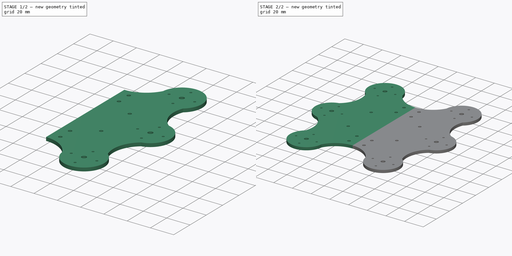
[diagram: build sequence overview — one tinted view per stage of 2, left to right]
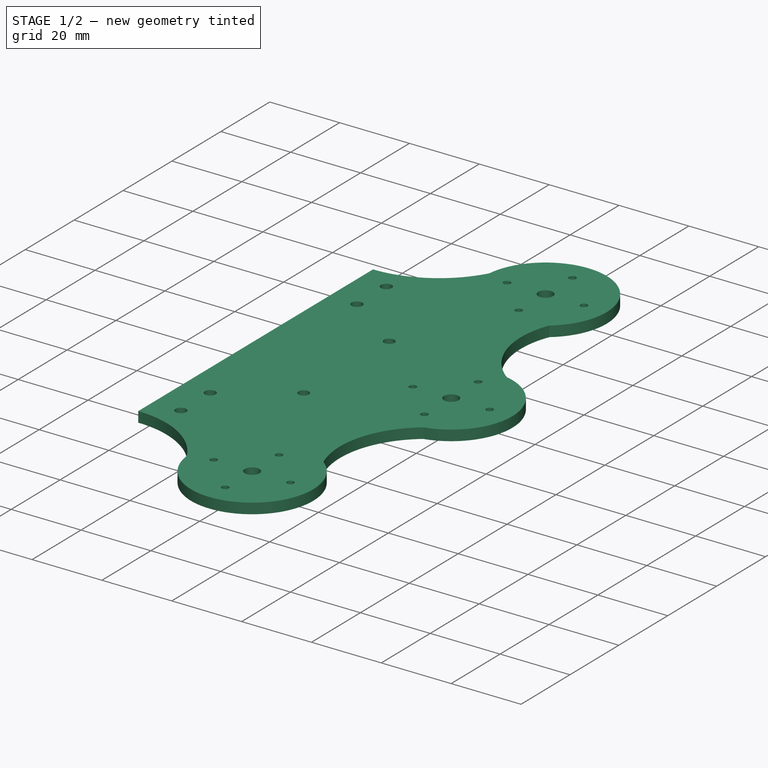
[diagram: stage 1 of 2 — iso view after this stage's code; geometry added in this stage tinted green]
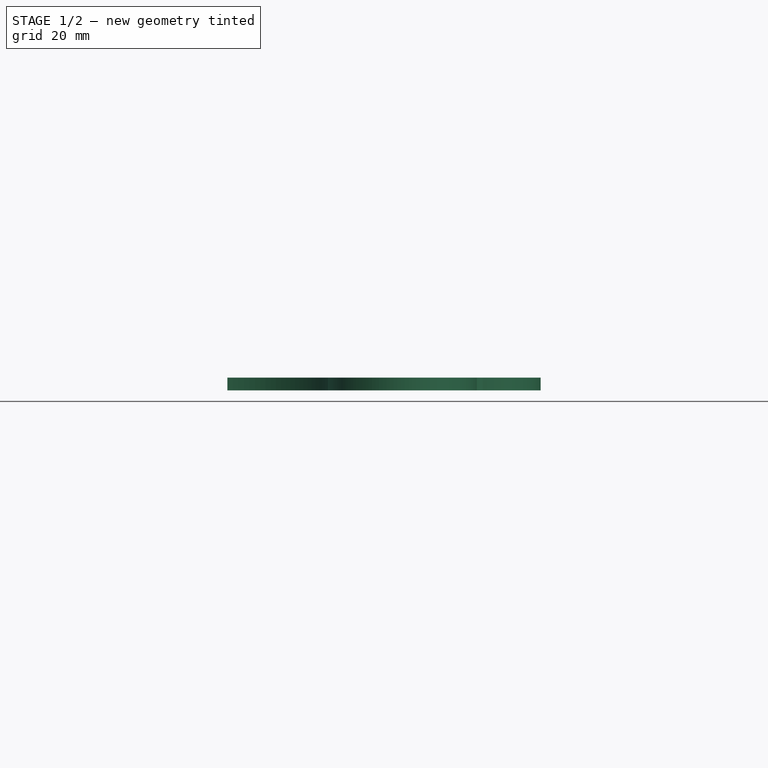
[diagram: stage 1 of 2 — front view after this stage's code; geometry added in this stage tinted green]
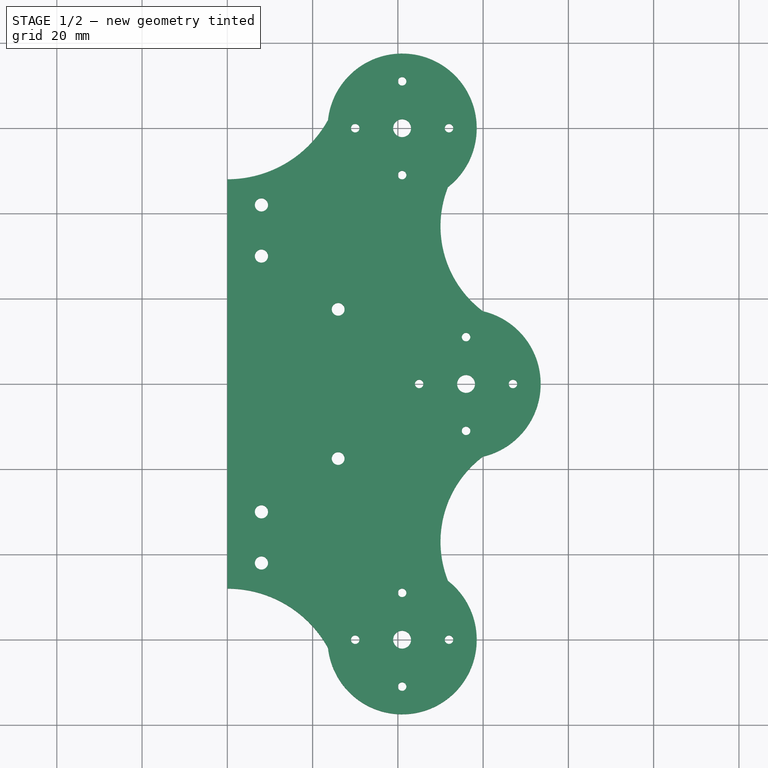
[diagram: stage 1 of 2 — top view after this stage's code; geometry added in this stage tinted green]
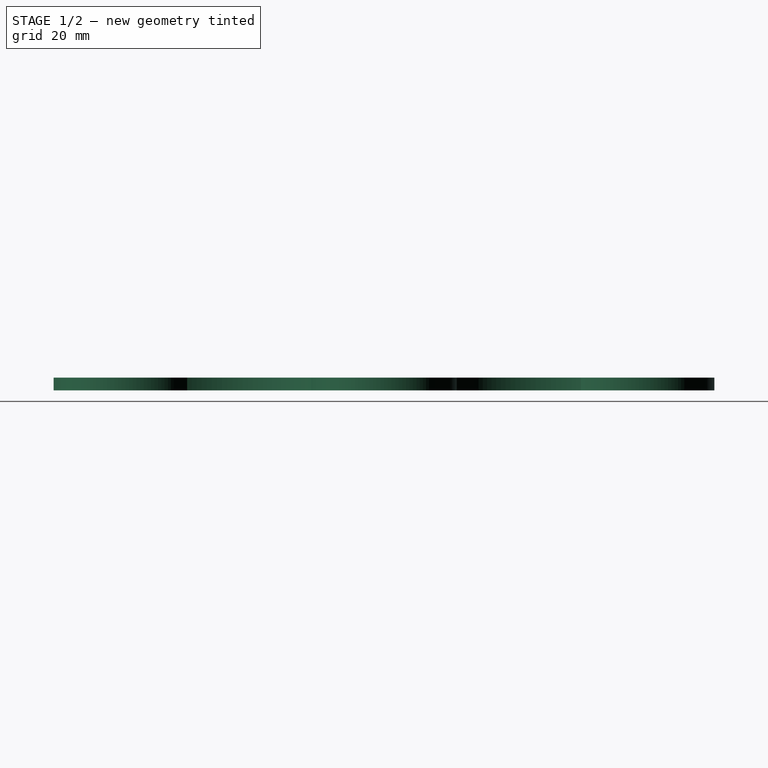
[diagram: stage 1 of 2 — right view after this stage's code; geometry added in this stage tinted green]
FCSTD DOCUMENT  (FreeCAD 0.18R16117 (Git))
Label: BaseMain
License: All rights reserved
LicenseURL: http://en.wikipedia.org/wiki/All_rights_reserved
objects: Sketcher::SketchObject×2, PartDesign::Pad×2, PartDesign::Body×2, Part::MultiFuse×1
note: 9 computed .brp shape members not serialized (recipe doc carries the construction recipe); baked Part::Feature solids carry a one-line shape summary decoded from their .brp

FEATURE [Sketcher::SketchObject] Sketch
  MapMode = 5
  Support = -> [XY_Plane]
  sketch-geometry (29):
    g0: ArcOfCircle CenterX=56 CenterY=0 CenterZ=0 NormalX=0 NormalY=0 NormalZ=1 AngleXU=0 Radius=17.5 StartAngle=4.93886 EndAngle=7.62751
    g1: ArcOfCircle CenterX=41 CenterY=60 CenterZ=0 NormalX=0 NormalY=0 NormalZ=1 AngleXU=0 Radius=17.5 StartAngle=5.37395 EndAngle=9.31672
    g2: ArcOfCircle CenterX=41 CenterY=-60 CenterZ=0 NormalX=0 NormalY=0 NormalZ=1 AngleXU=0 Radius=17.5 StartAngle=3.24965 EndAngle=7.19242
    g3: LineSegment StartX=1.7e-15 StartY=48 StartZ=0 EndX=1.7e-15 EndY=-48 EndZ=0
    g4: ArcOfCircle CenterX=0 CenterY=75 CenterZ=0 NormalX=0 NormalY=0 NormalZ=1 AngleXU=0 Radius=27 StartAngle=4.71239 EndAngle=5.77607
    g5: ArcOfCircle CenterX=0 CenterY=-75 CenterZ=0 NormalX=0 NormalY=0 NormalZ=1 AngleXU=0 Radius=27 StartAngle=0.507112 EndAngle=1.5708
    g6: ArcOfCircle CenterX=75 CenterY=37 CenterZ=0 NormalX=0 NormalY=0 NormalZ=1 AngleXU=0 Radius=25 StartAngle=2.76508 EndAngle=4.06535
    g7: ArcOfCircle CenterX=75 CenterY=-37 CenterZ=0 NormalX=0 NormalY=0 NormalZ=1 AngleXU=0 Radius=25 StartAngle=2.21783 EndAngle=3.5181
    g8: Circle CenterX=41 CenterY=60 CenterZ=0 NormalX=0 NormalY=0 NormalZ=1 AngleXU=0 Radius=2.1
    g9: Circle CenterX=56 CenterY=0 CenterZ=0 NormalX=0 NormalY=0 NormalZ=1 AngleXU=0 Radius=2.1
    g10: Circle CenterX=41 CenterY=-60 CenterZ=0 NormalX=0 NormalY=0 NormalZ=1 AngleXU=0 Radius=2.1
    g11: Circle CenterX=41 CenterY=71 CenterZ=0 NormalX=0 NormalY=0 NormalZ=1 AngleXU=0 Radius=1
    g12: Circle CenterX=41 CenterY=49 CenterZ=0 NormalX=0 NormalY=0 NormalZ=1 AngleXU=0 Radius=1
    g13: Circle CenterX=52 CenterY=60 CenterZ=0 NormalX=0 NormalY=0 NormalZ=1 AngleXU=0 Radius=1
    g14: Circle CenterX=30 CenterY=60 CenterZ=0 NormalX=0 NormalY=0 NormalZ=1 AngleXU=0 Radius=1
    g15: Circle CenterX=56 CenterY=11 CenterZ=0 NormalX=0 NormalY=0 NormalZ=1 AngleXU=0 Radius=1
    g16: Circle CenterX=56 CenterY=-11 CenterZ=0 NormalX=0 NormalY=0 NormalZ=1 AngleXU=0 Radius=1
    g17: Circle CenterX=67 CenterY=0 CenterZ=0 NormalX=0 NormalY=0 NormalZ=1 AngleXU=0 Radius=1
    g18: Circle CenterX=45 CenterY=0 CenterZ=0 NormalX=0 NormalY=0 NormalZ=1 AngleXU=0 Radius=1
    g19: Circle CenterX=41 CenterY=-49 CenterZ=0 NormalX=0 NormalY=0 NormalZ=1 AngleXU=0 Radius=1
    g20: Circle CenterX=41 CenterY=-71 CenterZ=0 NormalX=0 NormalY=0 NormalZ=1 AngleXU=0 Radius=1
    g21: Circle CenterX=52 CenterY=-60 CenterZ=0 NormalX=0 NormalY=0 NormalZ=1 AngleXU=0 Radius=1
    g22: Circle CenterX=30 CenterY=-60 CenterZ=0 NormalX=0 NormalY=0 NormalZ=1 AngleXU=0 Radius=1
    g23: Circle CenterX=8 CenterY=-42 CenterZ=0 NormalX=0 NormalY=0 NormalZ=1 AngleXU=0 Radius=1.55
    g24: Circle CenterX=8 CenterY=-30 CenterZ=0 NormalX=0 NormalY=0 NormalZ=1 AngleXU=0 Radius=1.55
    g25: Circle CenterX=8 CenterY=30 CenterZ=0 NormalX=0 NormalY=0 NormalZ=1 AngleXU=0 Radius=1.55
    g26: Circle CenterX=8 CenterY=42 CenterZ=0 NormalX=0 NormalY=0 NormalZ=1 AngleXU=0 Radius=1.55
    g27: Circle CenterX=26 CenterY=17.5 CenterZ=0 NormalX=0 NormalY=0 NormalZ=1 AngleXU=0 Radius=1.5
    g28: Circle CenterX=26 CenterY=-17.5 CenterZ=0 NormalX=0 NormalY=0 NormalZ=1 AngleXU=0 Radius=1.5
  constraints (80):
    c: Equal(g0,g2)
    c: Equal(g2,g1)
    c: Symmetric(g1,g2,g-1)
    c: Radius(g1) = 17.5
    c: PointOnObject(g0,g-1)
    c: DistanceY(g2,g1) = 120
    c: DistanceX(g-1,g0) = 56
    c: DistanceX(g-1,g1) = 41
    c: Vertical(g3)
    c: PointOnObject(g4,g-2)
    c: Radius(g4) = 27
    c: DistanceY(g-1,g4) = 75
    c: Symmetric(g5,g4,g-1)
    c: Coincident(g3,g5)
    c: Coincident(g3,g4)
    c: DistanceX(g-1,g6) = 75
    c: DistanceY(g-1,g6) = 37
    c: Symmetric(g7,g6,g-1)
    c: PointOnObject(g4,g-2)
    c: Equal(g6,g7)
    c: Equal(g5,g4)
    c: Radius(g6) = 25
    c: Coincident(g1,g6)
    c: Coincident(g1,g4)
    c: Coincident(g0,g7)
    c: Coincident(g0,g6)
    c: Coincident(g2,g5)
    c: Coincident(g2,g7)
    c: Coincident(g8,g1)
    c: Coincident(g10,g2)
    c: Equal(g10,g9)
    c: Equal(g9,g8)
    c: Diameter(g8) = 4.2
    c: Equal(g14,g11)
    c: Equal(g11,g13)
    c: Equal(g13,g12)
    c: Diameter(g11) = 2
    c: Vertical(g11,g12)
    c: Horizontal(g14,g13)
    c: Symmetric(g11,g12,g1)
    c: Symmetric(g13,g14,g1)
    c: DistanceY(g1,g11) = 11
    c: DistanceX(g14,g1) = 11
    c: Equal(g18,g15)
    c: Equal(g15,g17)
    c: Equal(g17,g16)
    c: Equal(g11,g15) = 2
    c: Vertical(g15,g16)
    c: Horizontal(g18,g17)
    c: Symmetric(g15,g16,g0)
    c: Symmetric(g17,g18,g0)
    c: DistanceY(g15) = 11
    c: DistanceX(g18,g0) = 11
    c: Equal(g22,g19)
    c: Equal(g19,g21)
    c: Equal(g21,g20)
    c: Vertical(g19,g20)
    c: Horizontal(g22,g21)
    c: Symmetric(g21,g22,g2)
    c: DistanceX(g22,g2) = 11
    c: Symmetric(g19,g20,g2)
    c: DistanceY(g2,g19) = 11
    c: Diameter(g19) = 2
    c: Coincident(g9,g0)
    c: Equal(g24,g23)
    c: Diameter(g24) = 3.1
    c: Vertical(g24,g23)
    c: DistanceY(g23,g24) = 12
    c: DistanceY(g24,g-1) = 30
    c: DistanceX(g-1,g24) = 8
    c: Equal(g26,g25)
    c: Equal(g24,g26) = 3
    c: Vertical(g26,g25)
    c: DistanceY(g25,g26) = 12
    c: Symmetric(g25,g24,g-1)
    c: Equal(g27,g28)
    c: Symmetric(g27,g28,g-1)
    c: DistanceX(g-1,g27) = 26
    c: DistanceY(g28,g27) = 35
    c: Diameter(g27) = 3
FEATURE [PartDesign::Pad] Pad
  Length = 3
  Length2 = 100
  Profile = -> Sketch
  Type = 0
FEATURE [PartDesign::Body] Body
  Group = -> [Sketch,Pad]
  Origin = -> Origin
  Tip = -> Pad
FEATURE [Sketcher::SketchObject] Sketch001
  MapMode = 5
  Support = -> [XY_Plane001]
  sketch-geometry (29):
    g0: ArcOfCircle CenterX=56 CenterY=0 CenterZ=0 NormalX=0 NormalY=0 NormalZ=1 AngleXU=0 Radius=17.5 StartAngle=4.93886 EndAngle=7.62751
    g1: ArcOfCircle CenterX=41 CenterY=60 CenterZ=0 NormalX=0 NormalY=0 NormalZ=1 AngleXU=0 Radius=17.5 StartAngle=5.37395 EndAngle=9.31672
    g2: ArcOfCircle CenterX=41 CenterY=-60 CenterZ=0 NormalX=0 NormalY=0 NormalZ=1 AngleXU=0 Radius=17.5 StartAngle=3.24965 EndAngle=7.19242
    g3: LineSegment StartX=-5e-15 StartY=48 StartZ=0 EndX=-5e-15 EndY=-48 EndZ=0
    g4: ArcOfCircle CenterX=0 CenterY=75 CenterZ=0 NormalX=0 NormalY=0 NormalZ=1 AngleXU=0 Radius=27 StartAngle=4.71239 EndAngle=5.77607
    g5: ArcOfCircle CenterX=0 CenterY=-75 CenterZ=0 NormalX=0 NormalY=0 NormalZ=1 AngleXU=0 Radius=27 StartAngle=0.507112 EndAngle=1.5708
    g6: ArcOfCircle CenterX=75 CenterY=37 CenterZ=0 NormalX=0 NormalY=0 NormalZ=1 AngleXU=0 Radius=25 StartAngle=2.76508 EndAngle=4.06535
    g7: ArcOfCircle CenterX=75 CenterY=-37 CenterZ=0 NormalX=0 NormalY=0 NormalZ=1 AngleXU=0 Radius=25 StartAngle=2.21783 EndAngle=3.5181
    g8: Circle CenterX=41 CenterY=60 CenterZ=0 NormalX=0 NormalY=0 NormalZ=1 AngleXU=0 Radius=2.1
    g9: Circle CenterX=56 CenterY=0 CenterZ=0 NormalX=0 NormalY=0 NormalZ=1 AngleXU=0 Radius=2.1
    g10: Circle CenterX=41 CenterY=-60 CenterZ=0 NormalX=0 NormalY=0 NormalZ=1 AngleXU=0 Radius=2.1
    g11: Circle CenterX=41 CenterY=71 CenterZ=0 NormalX=0 NormalY=0 NormalZ=1 AngleXU=0 Radius=1
    g12: Circle CenterX=41 CenterY=49 CenterZ=0 NormalX=0 NormalY=0 NormalZ=1 AngleXU=0 Radius=1
    g13: Circle CenterX=52 CenterY=60 CenterZ=0 NormalX=0 NormalY=0 NormalZ=1 AngleXU=0 Radius=1
    g14: Circle CenterX=30 CenterY=60 CenterZ=0 NormalX=0 NormalY=0 NormalZ=1 AngleXU=0 Radius=1
    g15: Circle CenterX=56 CenterY=11 CenterZ=0 NormalX=0 NormalY=0 NormalZ=1 AngleXU=0 Radius=1
    g16: Circle CenterX=56 CenterY=-11 CenterZ=0 NormalX=0 NormalY=0 NormalZ=1 AngleXU=0 Radius=1
    g17: Circle CenterX=67 CenterY=0 CenterZ=0 NormalX=0 NormalY=0 NormalZ=1 AngleXU=0 Radius=1
    g18: Circle CenterX=45 CenterY=0 CenterZ=0 NormalX=0 NormalY=0 NormalZ=1 AngleXU=0 Radius=1
    g19: Circle CenterX=41 CenterY=-49 CenterZ=0 NormalX=0 NormalY=0 NormalZ=1 AngleXU=0 Radius=1
    g20: Circle CenterX=41 CenterY=-71 CenterZ=0 NormalX=0 NormalY=0 NormalZ=1 AngleXU=0 Radius=1
    g21: Circle CenterX=52 CenterY=-60 CenterZ=0 NormalX=0 NormalY=0 NormalZ=1 AngleXU=0 Radius=1
    g22: Circle CenterX=30 CenterY=-60 CenterZ=0 NormalX=0 NormalY=0 NormalZ=1 AngleXU=0 Radius=1
    g23: Circle CenterX=8 CenterY=-42 CenterZ=0 NormalX=0 NormalY=0 NormalZ=1 AngleXU=0 Radius=1.55
    g24: Circle CenterX=8 CenterY=-30 CenterZ=0 NormalX=0 NormalY=0 NormalZ=1 AngleXU=0 Radius=1.55
    g25: Circle CenterX=8 CenterY=30 CenterZ=0 NormalX=0 NormalY=0 NormalZ=1 AngleXU=0 Radius=1.55
    g26: Circle CenterX=8 CenterY=42 CenterZ=0 NormalX=0 NormalY=0 NormalZ=1 AngleXU=0 Radius=1.55
    g27: Circle CenterX=26 CenterY=17.5 CenterZ=0 NormalX=0 NormalY=0 NormalZ=1 AngleXU=0 Radius=1.5
    g28: Circle CenterX=26 CenterY=-17.5 CenterZ=0 NormalX=0 NormalY=0 NormalZ=1 AngleXU=0 Radius=1.5
  constraints (80):
    c: Equal(g0,g2)
    c: Equal(g2,g1)
    c: Symmetric(g1,g2,g-1)
    c: Radius(g1) = 17.5
    c: PointOnObject(g0,g-1)
    c: DistanceY(g2,g1) = 120
    c: DistanceX(g-1,g0) = 56
    c: DistanceX(g-1,g1) = 41
    c: Vertical(g3)
    c: PointOnObject(g4,g-2)
    c: Radius(g4) = 27
    c: DistanceY(g-1,g4) = 75
    c: Symmetric(g5,g4,g-1)
    c: Coincident(g3,g5)
    c: Coincident(g3,g4)
    c: DistanceX(g-1,g6) = 75
    c: DistanceY(g-1,g6) = 37
    c: Symmetric(g7,g6,g-1)
    c: PointOnObject(g4,g-2)
    c: Equal(g6,g7)
    c: Equal(g5,g4)
    c: Radius(g6) = 25
    c: Coincident(g1,g6)
    c: Coincident(g1,g4)
    c: Coincident(g0,g7)
    c: Coincident(g0,g6)
    c: Coincident(g2,g5)
    c: Coincident(g2,g7)
    c: Coincident(g8,g1)
    c: Coincident(g10,g2)
    c: Equal(g10,g9)
    c: Equal(g9,g8)
    c: Diameter(g8) = 4.2
    c: Equal(g14,g11)
    c: Equal(g11,g13)
    c: Equal(g13,g12)
    c: Diameter(g11) = 2
    c: Vertical(g11,g12)
    c: Horizontal(g14,g13)
    c: Symmetric(g11,g12,g1)
    c: Symmetric(g13,g14,g1)
    c: DistanceY(g1,g11) = 11
    c: DistanceX(g14,g1) = 11
    c: Equal(g18,g15)
    c: Equal(g15,g17)
    c: Equal(g17,g16)
    c: Equal(g11,g15) = 2
    c: Vertical(g15,g16)
    c: Horizontal(g18,g17)
    c: Symmetric(g15,g16,g0)
    c: Symmetric(g17,g18,g0)
    c: DistanceY(g15) = 11
    c: DistanceX(g18,g0) = 11
    c: Equal(g22,g19)
    c: Equal(g19,g21)
    c: Equal(g21,g20)
    c: Vertical(g19,g20)
    c: Horizontal(g22,g21)
    c: Symmetric(g21,g22,g2)
    c: DistanceX(g22,g2) = 11
    c: Symmetric(g19,g20,g2)
    c: DistanceY(g2,g19) = 11
    c: Diameter(g19) = 2
    c: Coincident(g9,g0)
    c: Equal(g24,g23)
    c: Diameter(g24) = 3.1
    c: Vertical(g24,g23)
    c: DistanceY(g23,g24) = 12
    c: DistanceY(g24,g-1) = 30
    c: DistanceX(g-1,g24) = 8
    c: Equal(g26,g25)
    c: Equal(g24,g26) = 3
    c: Vertical(g26,g25)
    c: DistanceY(g25,g26) = 12
    c: Symmetric(g25,g24,g-1)
    c: Equal(g27,g28)
    c: Symmetric(g27,g28,g-1)
    c: DistanceX(g-1,g27) = 26
    c: DistanceY(g28,g27) = 35
    c: Diameter(g27) = 3
FEATURE [PartDesign::Pad] Pad001
  Length = 3
  Length2 = 100
  Profile = -> Sketch001
  Type = 0
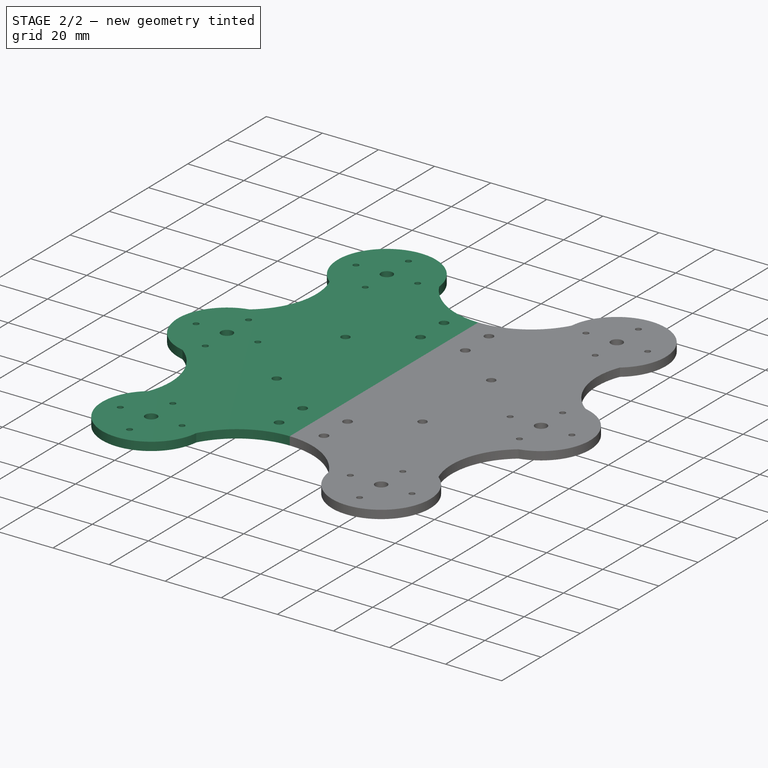
[diagram: stage 2 of 2 — iso view after this stage's code; geometry added in this stage tinted green]
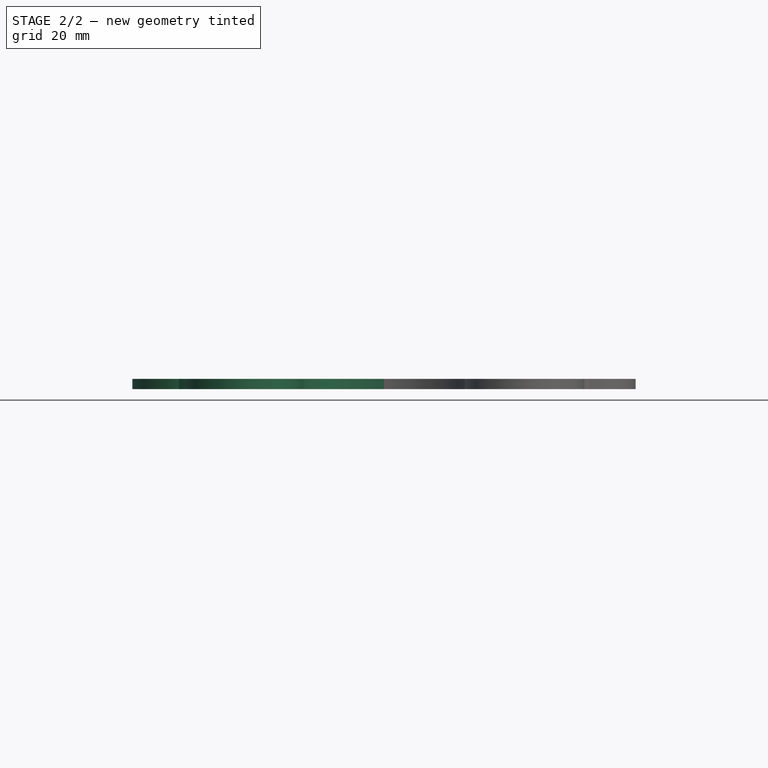
[diagram: stage 2 of 2 — front view after this stage's code; geometry added in this stage tinted green]
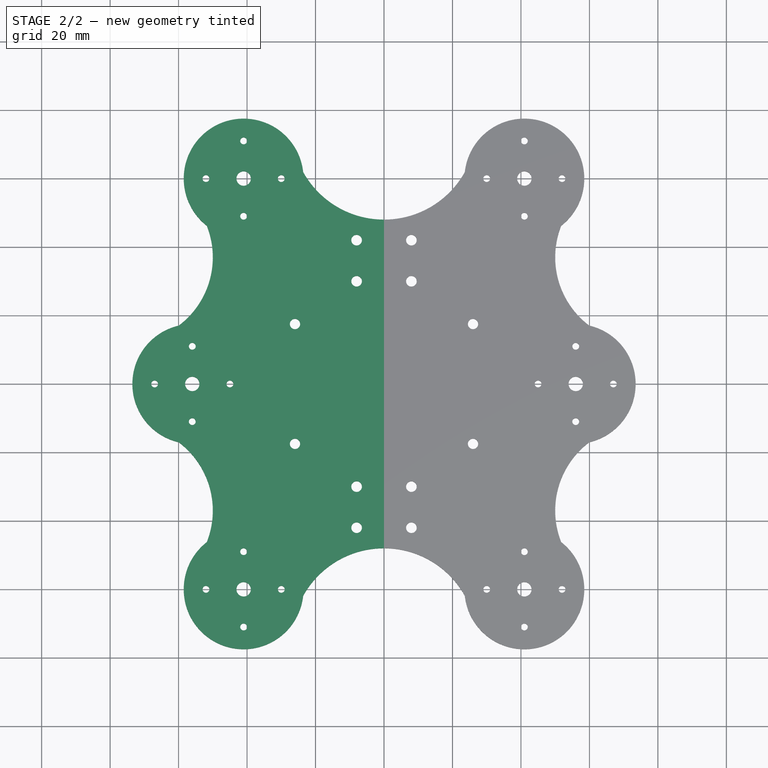
[diagram: stage 2 of 2 — top view after this stage's code; geometry added in this stage tinted green]
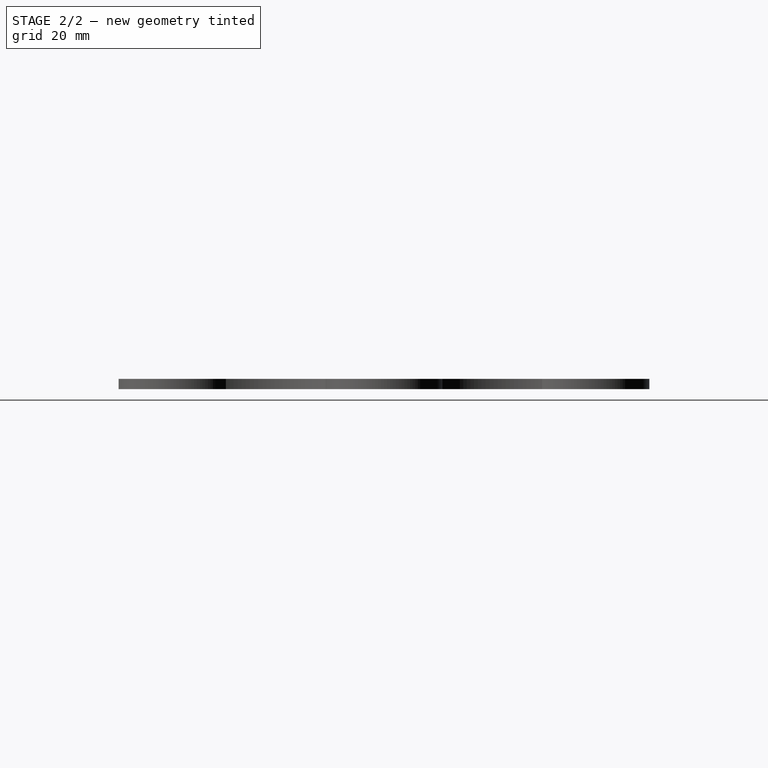
[diagram: stage 2 of 2 — right view after this stage's code; geometry added in this stage tinted green]
FEATURE [PartDesign::Body] Body001
  Group = -> [Sketch001,Pad001]
  Origin = -> Origin001
  Placement = pos=(0,0,0) rot=(0,0,1;3.14159rad)
  Tip = -> Pad001
FEATURE [Part::MultiFuse] Fusion
  Shapes = -> [Body,Body001]
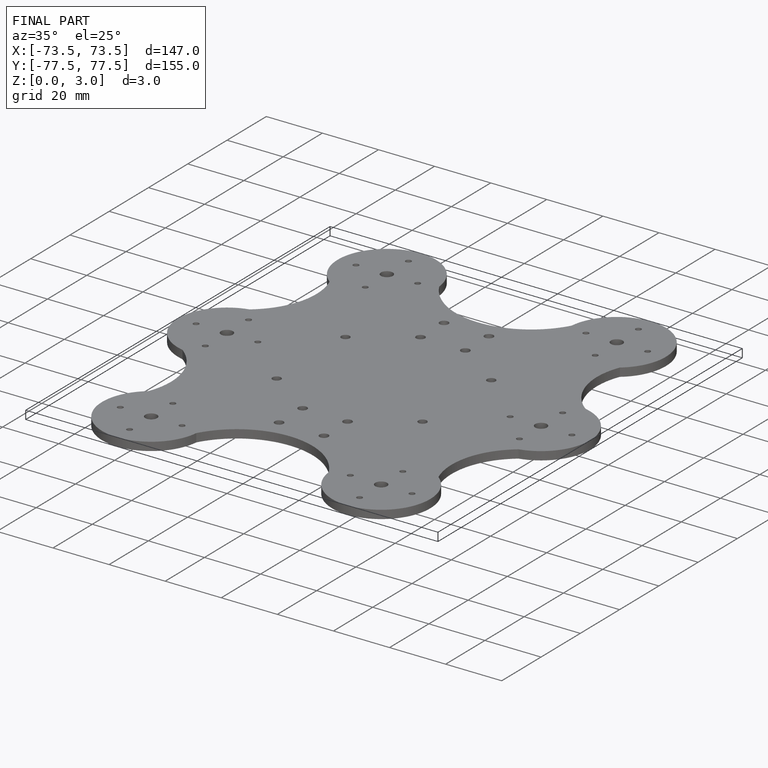
[diagram: finished part — iso view with bounding-box wireframe]
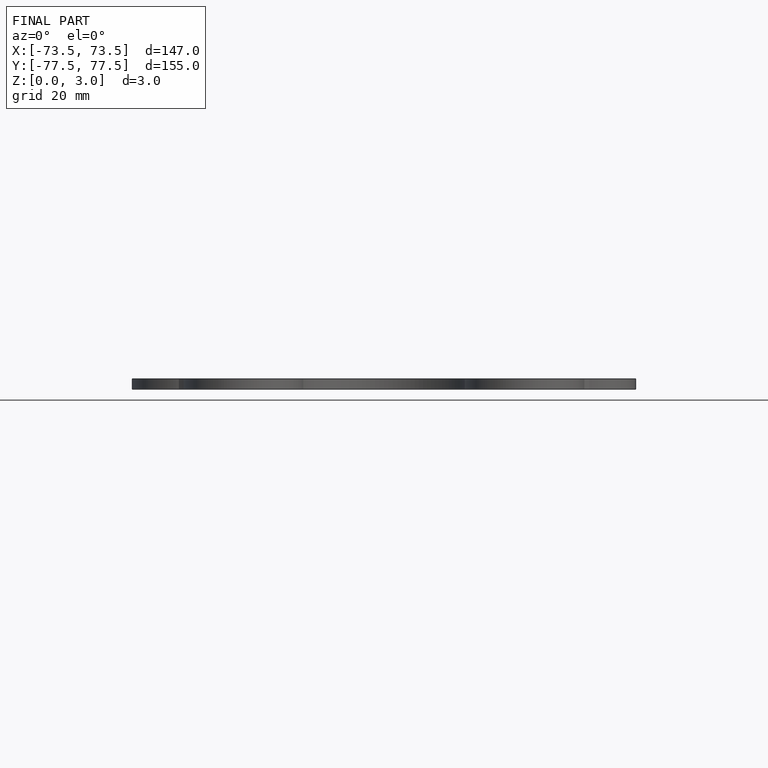
[diagram: finished part — front view with bounding-box wireframe]
